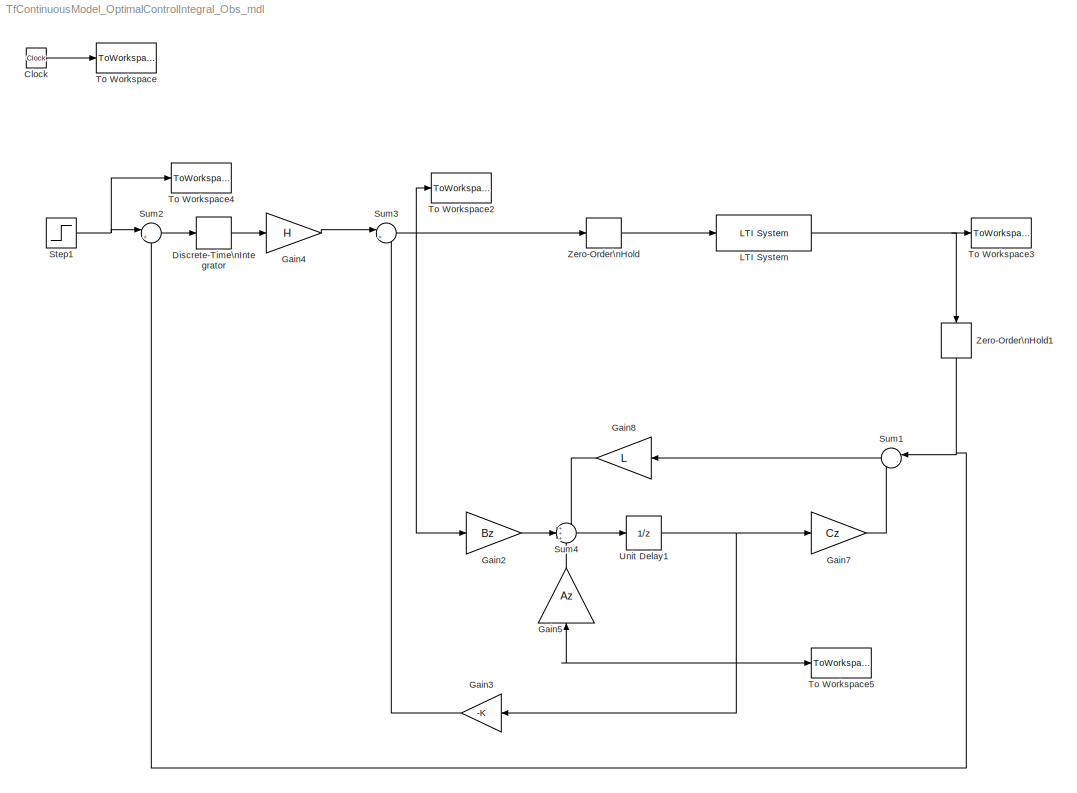
MODEL TfContinuousModel_OptimalControlIntegral_Obs_mdl
KIND model
BLOCK [Clock] Clock
  Decimation = 10
  SID = 1
BLOCK [DiscreteIntegrator] Discrete-Time\nIntegrator
  ExternalReset = none
  ICPrevOutput = DiscIntNeverNeededParam
  ICPrevScaledInput = DiscIntNeverNeededParam
  InitialConditionSource = internal
  IntegratorMethod = Integration: Forward Euler
  Ports = [1, 1]
  SID = 2
  SampleTime = Ts
BLOCK [Gain] Gain2
  Gain = Bz
  Multiplication = Matrix(K*u)
  OutDataTypeMode = Inherit via internal rule
  OutDataTypeStr = Inherit: Inherit via internal rule
  ParamDataTypeStr = Inherit: Inherit via internal rule
  ParameterDataTypeMode = Inherit via internal rule
  SID = 3
  SaturateOnIntegerOverflow = off
BLOCK [Gain] Gain3
  Gain = -K
  Multiplication = Matrix(K*u)
  OutDataTypeMode = Inherit via internal rule
  OutDataTypeStr = Inherit: Inherit via internal rule
  ParamDataTypeStr = Inherit: Inherit via internal rule
  ParameterDataTypeMode = Inherit via internal rule
  SID = 4
  SaturateOnIntegerOverflow = off
BLOCK [Gain] Gain4
  Gain = H
  Multiplication = Matrix(K*u)
  OutDataTypeMode = Inherit via internal rule
  OutDataTypeStr = Inherit: Inherit via internal rule
  ParamDataTypeStr = Inherit: Inherit via internal rule
  ParameterDataTypeMode = Inherit via internal rule
  SID = 5
  SaturateOnIntegerOverflow = off
BLOCK [Gain] Gain5
  Gain = Az
  Multiplication = Matrix(K*u)
  OutDataTypeMode = Inherit via internal rule
  OutDataTypeStr = Inherit: Inherit via internal rule
  ParamDataTypeStr = Inherit: Inherit via internal rule
  ParameterDataTypeMode = Inherit via internal rule
  SID = 6
  SaturateOnIntegerOverflow = off
BLOCK [Gain] Gain7
  Gain = Cz
  Multiplication = Matrix(K*u)
  OutDataTypeMode = Inherit via internal rule
  OutDataTypeStr = Inherit: Inherit via internal rule
  ParamDataTypeStr = Inherit: Inherit via internal rule
  ParameterDataTypeMode = Inherit via internal rule
  SID = 7
  SaturateOnIntegerOverflow = off
BLOCK [Gain] Gain8
  Gain = L
  Multiplication = Matrix(K*u)
  OutDataTypeMode = Inherit via internal rule
  OutDataTypeStr = Inherit: Inherit via internal rule
  ParamDataTypeStr = Inherit: Inherit via internal rule
  ParameterDataTypeMode = Inherit via internal rule
  SID = 8
  SaturateOnIntegerOverflow = off
BLOCK [Reference] LTI System  REF=cstblocks/LTI System
  FunctionWithSeparateData = off
  IC = []
  Ports = [1, 1]
  RTWMemSecDataConstants = Inherit from model
  RTWMemSecDataInternal = Inherit from model
  RTWMemSecDataParameters = Inherit from model
  RTWMemSecFuncExecute = Inherit from model
  RTWMemSecFuncInitTerm = Inherit from model
  SID = 9
  ShowPortLabels = FromPortIcon
  SourceBlock = cstblocks/LTI System
  SourceType = LTI Block
  SystemSampleTime = -1
  sys = G
BLOCK [Step] Step1
  After = yp
  SID = 10
  SampleTime = 0
BLOCK [Sum] Sum1
  IconShape = round
  InputSameDT = off
  Inputs = |-+
  OutDataTypeMode = Inherit via internal rule
  OutDataTypeStr = Inherit: Inherit via internal rule
  Ports = [2, 1]
  SID = 11
  SaturateOnIntegerOverflow = off
BLOCK [Sum] Sum2
  IconShape = round
  InputSameDT = off
  Inputs = |+-
  OutDataTypeMode = Inherit via internal rule
  OutDataTypeStr = Inherit: Inherit via internal rule
  Ports = [2, 1]
  SID = 12
  SaturateOnIntegerOverflow = off
BLOCK [Sum] Sum3
  IconShape = round
  InputSameDT = off
  Inputs = |++
  OutDataTypeMode = Inherit via internal rule
  OutDataTypeStr = Inherit: Inherit via internal rule
  Ports = [2, 1]
  SID = 13
  SaturateOnIntegerOverflow = off
BLOCK [Sum] Sum4
  IconShape = round
  InputSameDT = off
  Inputs = +++
  OutDataTypeMode = Inherit via internal rule
  OutDataTypeStr = Inherit: Inherit via internal rule
  Ports = [3, 1]
  SID = 14
  SaturateOnIntegerOverflow = off
BLOCK [ToWorkspace] To Workspace
  MaxDataPoints = inf
  Ports = [1]
  SID = 15
  SampleTime = -1
  SaveFormat = Array
  VariableName = time
BLOCK [ToWorkspace] To Workspace2
  MaxDataPoints = inf
  Ports = [1]
  SID = 16
  SampleTime = -1
  SaveFormat = Array
  VariableName = u
BLOCK [ToWorkspace] To Workspace3
  MaxDataPoints = inf
  Ports = [1]
  SID = 17
  SampleTime = -1
  SaveFormat = Array
  VariableName = y
BLOCK [ToWorkspace] To Workspace4
  MaxDataPoints = inf
  Ports = [1]
  SID = 18
  SampleTime = -1
  SaveFormat = Array
  VariableName = yd
BLOCK [ToWorkspace] To Workspace5
  MaxDataPoints = inf
  Ports = [1]
  SID = 19
  SampleTime = -1
  SaveFormat = Array
  VariableName = Xs
BLOCK [UnitDelay] Unit Delay1
  SID = 20
  SampleTime = Ts
BLOCK [ZeroOrderHold] Zero-Order\nHold
  SID = 21
  SampleTime = Ts
BLOCK [ZeroOrderHold] Zero-Order\nHold1
  SID = 22
  SampleTime = Ts
LINE Clock:1 -> To Workspace:1
LINE Discrete-Time\nIntegrator:1 -> Gain4:1
LINE Gain2:1 -> Sum4:2
LINE Gain3:1 -> Sum3:2
LINE Gain4:1 -> Sum3:1
LINE Gain5:1 -> Sum4:3
LINE Gain7:1 -> Sum1:2
LINE Gain8:1 -> Sum4:1
NET LTI System:1 -> To Workspace3:1, Zero-Order\nHold1:1
NET Step1:1 -> Sum2:1, To Workspace4:1
LINE Sum1:1 -> Gain8:1
LINE Sum2:1 -> Discrete-Time\nIntegrator:1
NET Sum3:1 -> Gain2:1, To Workspace2:1, Zero-Order\nHold:1
LINE Sum4:1 -> Unit Delay1:1
NET Unit Delay1:1 -> Gain3:1, Gain5:1, Gain7:1, To Workspace5:1
NET Zero-Order\nHold1:1 -> Sum1:1, Sum2:2
LINE Zero-Order\nHold:1 -> LTI System:1
note: NET lines group one-source signal fan-out (src -> all destinations, sorted); 1:1 wires keep LINE
